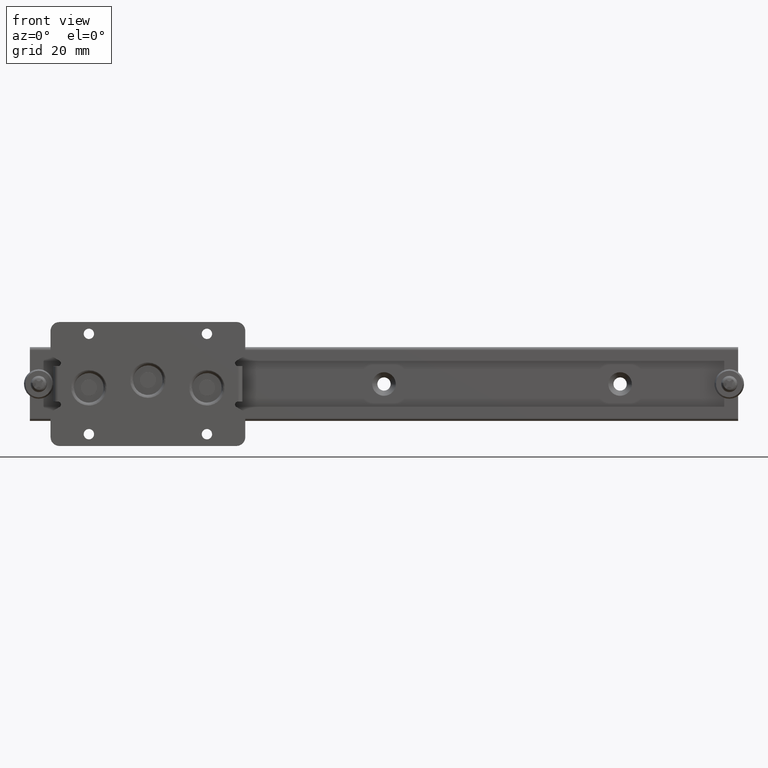
[diagram: clean part render]
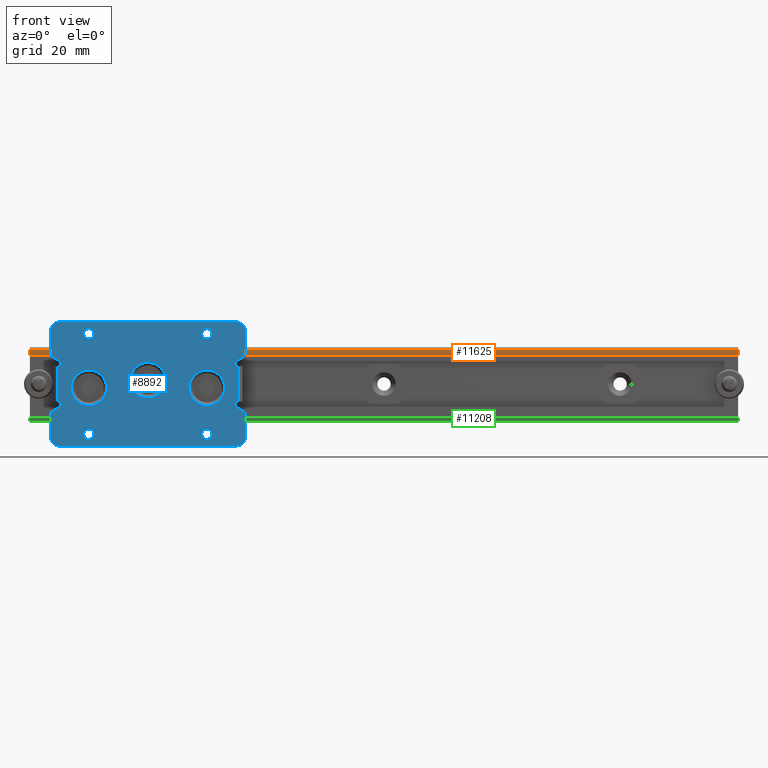
[diagram: same view with three faces highlighted in distinct colors, each labeled with its STEP entity id]
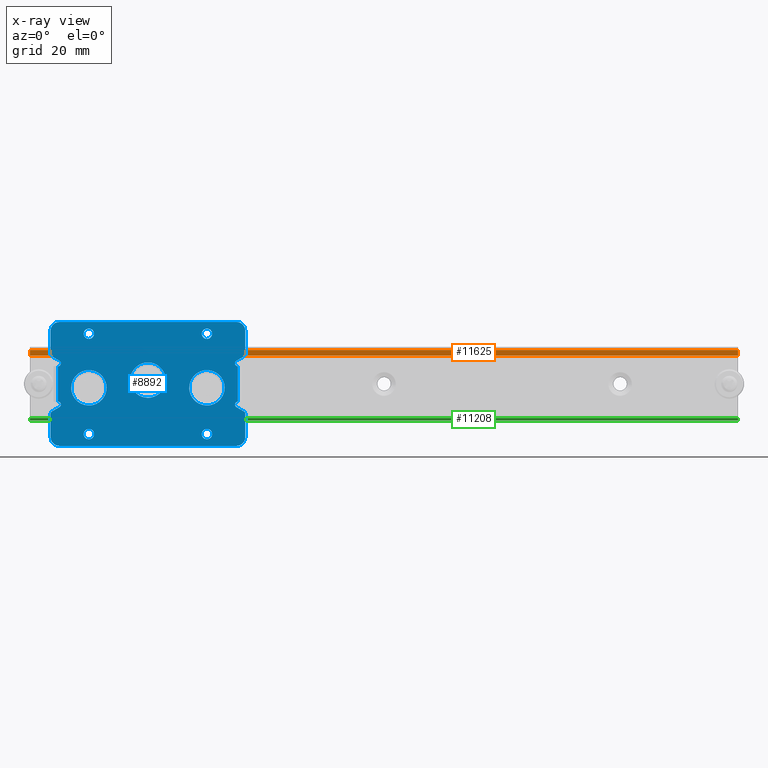
[diagram: x-ray of the same camera — body ghosted, the three highlighted faces saturated]
A machine part, front view with three faces highlighted in distinct colors.
The next image is the same camera in x-ray (body ghosted, the three faces saturated) — at least one of them is partly hidden behind the body in this view.
Their STEP definitions:

[orange] entity #11625 — the highlighted face is a freeform B-spline surface patch.
#11393=CARTESIAN_POINT('',(0.0,-8.500000000000000,9.599999999880820));
#11394=VERTEX_POINT('',#11393);
#11400=CARTESIAN_POINT('',(0.0,-8.500000000000000,11.499999999880901));
#11401=VERTEX_POINT('',#11400);
#11402=CARTESIAN_POINT('',(0.0,-8.500000000000000,9.599999999880820));
#11403=CARTESIAN_POINT('',(0.0,-8.500000000000000,11.499999999880901));
#11404=QUASI_UNIFORM_CURVE('',1,(#11402,#11403),.UNSPECIFIED.,.F.,.U.);
#11405=EDGE_CURVE('',#11394,#11401,#11404,.T.);
#11475=CARTESIAN_POINT('',(240.0,-8.500000000000000,11.499999999880901));
#11476=VERTEX_POINT('',#11475);
#11490=CARTESIAN_POINT('',(240.0,-8.500000000000000,9.599999999880820));
#11491=VERTEX_POINT('',#11490);
#11492=CARTESIAN_POINT('',(240.0,-8.500000000000000,9.599999999880820));
#11493=CARTESIAN_POINT('',(240.0,-8.500000000000000,11.499999999880901));
#11494=QUASI_UNIFORM_CURVE('',1,(#11492,#11493),.UNSPECIFIED.,.F.,.U.);
#11495=EDGE_CURVE('',#11491,#11476,#11494,.T.);
#11600=CARTESIAN_POINT('',(240.0,-8.500000000000000,11.499999999880901));
#11601=CARTESIAN_POINT('',(0.0,-8.500000000000000,11.499999999880901));
#11602=QUASI_UNIFORM_CURVE('',1,(#11600,#11601),.UNSPECIFIED.,.F.,.U.);
#11603=EDGE_CURVE('',#11476,#11401,#11602,.T.);
#11610=CARTESIAN_POINT('',(-11.987999534833410,-8.500000000000000,11.594904996198339));
#11611=CARTESIAN_POINT('',(-11.987999534833410,-8.500000000000000,9.505094952601413));
#11612=CARTESIAN_POINT('',(251.988005972135110,-8.500000000000000,11.594904996198339));
#11613=CARTESIAN_POINT('',(251.988005972135110,-8.500000000000000,9.505094952601413));
#11614=B_SPLINE_SURFACE_WITH_KNOTS('',1,1,((#11610,#11612),(#11611,#11613)),.UNSPECIFIED.,.F.,.F.,.U.,(2,2),(2,2),(0.0,2.089810043596925),(0.0,263.976005506968480),.UNSPECIFIED.);
#11615=ORIENTED_EDGE('',*,*,#11405,.F.);
#11616=CARTESIAN_POINT('',(240.0,-8.500000000000000,9.599999999880820));
#11617=CARTESIAN_POINT('',(0.0,-8.500000000000000,9.599999999880820));
#11618=QUASI_UNIFORM_CURVE('',1,(#11616,#11617),.UNSPECIFIED.,.F.,.U.);
#11619=EDGE_CURVE('',#11491,#11394,#11618,.T.);
#11620=ORIENTED_EDGE('',*,*,#11619,.F.);
#11621=ORIENTED_EDGE('',*,*,#11495,.T.);
#11622=ORIENTED_EDGE('',*,*,#11603,.T.);
#11623=EDGE_LOOP('',(#11615,#11620,#11621,#11622));
#11624=FACE_OUTER_BOUND('',#11623,.T.);
#11625=ADVANCED_FACE('',(#11624),#11614,.T.);

[blue] entity #8892 — the highlighted face is a freeform B-spline surface patch.
#6529=CARTESIAN_POINT('',(18.253264102996422,-12.0,17.106834948023089));
#6530=VERTEX_POINT('',#6529);
#6531=CARTESIAN_POINT('',(20.0,-12.0,15.250000000000000));
#6532=VERTEX_POINT('',#6531);
#6533=CARTESIAN_POINT('',(18.253264102996415,-12.0,17.106834948023085));
#6534=CARTESIAN_POINT('',(18.250000000000000,-11.999999999999996,17.053467337696457));
#6535=CARTESIAN_POINT('',(18.250000000000000,-12.0,17.0));
#6536=CARTESIAN_POINT('',(18.250000000000000,-12.0,15.250000000000002));
#6537=CARTESIAN_POINT('',(20.0,-12.0,15.250000000000000));
#6545=(BOUNDED_CURVE()B_SPLINE_CURVE(2,(#6533,#6534,#6535,#6536,#6537),.UNSPECIFIED.,.F.,.U.)B_SPLINE_CURVE_WITH_KNOTS((3,2,3),(0.239332961862932,0.250000000000000,0.500000000000000),.UNSPECIFIED.)CURVE()GEOMETRIC_REPRESENTATION_ITEM()RATIONAL_B_SPLINE_CURVE((0.976072040860854,0.987502787459313,1.0,0.707106781186547,1.0))REPRESENTATION_ITEM(''));
#6546=EDGE_CURVE('',#6530,#6532,#6545,.T.);
#6548=CARTESIAN_POINT('',(21.746735897003578,-12.0,16.893165051976919));
#6549=VERTEX_POINT('',#6548);
#6550=CARTESIAN_POINT('',(20.0,-12.0,15.250000000000000));
#6551=CARTESIAN_POINT('',(21.646235613461901,-12.0,15.249999999999998));
#6552=CARTESIAN_POINT('',(21.746735897003582,-12.0,16.893165051976915));
#6560=(BOUNDED_CURVE()B_SPLINE_CURVE(2,(#6550,#6551,#6552),.UNSPECIFIED.,.F.,.U.)B_SPLINE_CURVE_WITH_KNOTS((3,3),(0.500000000000000,0.739332961862932),.UNSPECIFIED.)CURVE()GEOMETRIC_REPRESENTATION_ITEM()RATIONAL_B_SPLINE_CURVE((1.0,0.719603993727234,0.976072040860855))REPRESENTATION_ITEM(''));
#6561=EDGE_CURVE('',#6532,#6549,#6560,.T.);
#6628=CARTESIAN_POINT('',(20.0,-12.0,18.750000000000000));
#6629=VERTEX_POINT('',#6628);
#6630=CARTESIAN_POINT('',(20.0,-12.0,18.750000000000000));
#6631=CARTESIAN_POINT('',(18.353764386538106,-11.999999999999998,18.750000000000000));
#6632=CARTESIAN_POINT('',(18.253264102996418,-12.000000000000004,17.106834948023089));
#6640=(BOUNDED_CURVE()B_SPLINE_CURVE(2,(#6630,#6631,#6632),.UNSPECIFIED.,.F.,.U.)B_SPLINE_CURVE_WITH_KNOTS((3,3),(0.0,0.239332961862932),.UNSPECIFIED.)CURVE()GEOMETRIC_REPRESENTATION_ITEM()RATIONAL_B_SPLINE_CURVE((1.0,0.719603993727235,0.976072040860854))REPRESENTATION_ITEM(''));
#6641=EDGE_CURVE('',#6629,#6530,#6640,.T.);
#6675=CARTESIAN_POINT('',(21.746735897003582,-12.0,16.893165051976915));
#6676=CARTESIAN_POINT('',(21.750000000000004,-12.0,16.946532662303547));
#6677=CARTESIAN_POINT('',(21.750000000000000,-12.0,17.0));
#6678=CARTESIAN_POINT('',(21.750000000000004,-12.0,18.750000000000007));
#6679=CARTESIAN_POINT('',(20.0,-12.0,18.750000000000000));
#6687=(BOUNDED_CURVE()B_SPLINE_CURVE(2,(#6675,#6676,#6677,#6678,#6679),.UNSPECIFIED.,.F.,.U.)B_SPLINE_CURVE_WITH_KNOTS((3,2,3),(0.739332961862932,0.750000000000000,1.0),.UNSPECIFIED.)CURVE()GEOMETRIC_REPRESENTATION_ITEM()RATIONAL_B_SPLINE_CURVE((0.976072040860855,0.987502787459313,1.0,0.707106781186547,1.0))REPRESENTATION_ITEM(''));
#6688=EDGE_CURVE('',#6549,#6629,#6687,.T.);
#6711=CARTESIAN_POINT('',(58.253264102996411,-12.0,17.106834948023089));
#6712=VERTEX_POINT('',#6711);
#6713=CARTESIAN_POINT('',(60.0,-12.0,15.250000000000000));
#6714=VERTEX_POINT('',#6713);
#6715=CARTESIAN_POINT('',(58.253264102996411,-12.000000000000002,17.106834948023089));
#6716=CARTESIAN_POINT('',(58.249999999999993,-11.999999999999996,17.053467337696453));
#6717=CARTESIAN_POINT('',(58.249999999999993,-12.0,17.0));
#6718=CARTESIAN_POINT('',(58.250000000000000,-12.0,15.250000000000002));
#6719=CARTESIAN_POINT('',(60.0,-12.0,15.250000000000000));
#6727=(BOUNDED_CURVE()B_SPLINE_CURVE(2,(#6715,#6716,#6717,#6718,#6719),.UNSPECIFIED.,.F.,.U.)B_SPLINE_CURVE_WITH_KNOTS((3,2,3),(0.239332961862932,0.250000000000000,0.500000000000000),.UNSPECIFIED.)CURVE()GEOMETRIC_REPRESENTATION_ITEM()RATIONAL_B_SPLINE_CURVE((0.976072040860854,0.987502787459313,1.0,0.707106781186547,1.0))REPRESENTATION_ITEM(''));
#6728=EDGE_CURVE('',#6712,#6714,#6727,.T.);
#6730=CARTESIAN_POINT('',(61.746735897003582,-12.0,16.893165051976919));
#6731=VERTEX_POINT('',#6730);
#6732=CARTESIAN_POINT('',(60.0,-12.0,15.250000000000000));
#6733=CARTESIAN_POINT('',(61.646235613461897,-12.0,15.249999999999998));
#6734=CARTESIAN_POINT('',(61.746735897003589,-12.0,16.893165051976915));
#6742=(BOUNDED_CURVE()B_SPLINE_CURVE(2,(#6732,#6733,#6734),.UNSPECIFIED.,.F.,.U.)B_SPLINE_CURVE_WITH_KNOTS((3,3),(0.500000000000000,0.739332961862932),.UNSPECIFIED.)CURVE()GEOMETRIC_REPRESENTATION_ITEM()RATIONAL_B_SPLINE_CURVE((1.0,0.719603993727234,0.976072040860855))REPRESENTATION_ITEM(''));
#6743=EDGE_CURVE('',#6714,#6731,#6742,.T.);
#6810=CARTESIAN_POINT('',(60.0,-12.0,18.750000000000000));
#6811=VERTEX_POINT('',#6810);
#6812=CARTESIAN_POINT('',(60.0,-12.0,18.750000000000000));
#6813=CARTESIAN_POINT('',(58.353764386538103,-12.0,18.750000000000011));
#6814=CARTESIAN_POINT('',(58.253264102996411,-12.000000000000005,17.106834948023085));
#6822=(BOUNDED_CURVE()B_SPLINE_CURVE(2,(#6812,#6813,#6814),.UNSPECIFIED.,.F.,.U.)B_SPLINE_CURVE_WITH_KNOTS((3,3),(0.0,0.239332961862931),.UNSPECIFIED.)CURVE()GEOMETRIC_REPRESENTATION_ITEM()RATIONAL_B_SPLINE_CURVE((1.0,0.719603993727235,0.976072040860854))REPRESENTATION_ITEM(''));
#6823=EDGE_CURVE('',#6811,#6712,#6822,.T.);
#6857=CARTESIAN_POINT('',(61.746735897003575,-11.999999999999998,16.893165051976915));
#6858=CARTESIAN_POINT('',(61.750000000000000,-12.000000000000004,16.946532662303550));
#6859=CARTESIAN_POINT('',(61.750000000000000,-12.0,17.0));
#6860=CARTESIAN_POINT('',(61.750000000000000,-12.0,18.750000000000007));
#6861=CARTESIAN_POINT('',(60.0,-12.0,18.750000000000000));
#6869=(BOUNDED_CURVE()B_SPLINE_CURVE(2,(#6857,#6858,#6859,#6860,#6861),.UNSPECIFIED.,.F.,.U.)B_SPLINE_CURVE_WITH_KNOTS((3,2,3),(0.739332961862932,0.750000000000000,1.0),.UNSPECIFIED.)CURVE()GEOMETRIC_REPRESENTATION_ITEM()RATIONAL_B_SPLINE_CURVE((0.976072040860854,0.987502787459313,1.0,0.707106781186547,1.0))REPRESENTATION_ITEM(''));
#6870=EDGE_CURVE('',#6731,#6811,#6869,.T.);
#6893=CARTESIAN_POINT('',(58.253264102996411,-12.0,-16.893165051976919));
#6894=VERTEX_POINT('',#6893);
#6895=CARTESIAN_POINT('',(60.0,-12.0,-18.750000000000000));
#6896=VERTEX_POINT('',#6895);
#6897=CARTESIAN_POINT('',(58.253264102996411,-12.000000000000002,-16.893165051976919));
#6898=CARTESIAN_POINT('',(58.249999999999986,-11.999999999999996,-16.946532662303554));
#6899=CARTESIAN_POINT('',(58.249999999999993,-12.0,-17.0));
#6900=CARTESIAN_POINT('',(58.250000000000000,-12.0,-18.750000000000007));
#6901=CARTESIAN_POINT('',(60.0,-12.0,-18.750000000000000));
#6909=(BOUNDED_CURVE()B_SPLINE_CURVE(2,(#6897,#6898,#6899,#6900,#6901),.UNSPECIFIED.,.F.,.U.)B_SPLINE_CURVE_WITH_KNOTS((3,2,3),(0.239332961862932,0.250000000000000,0.500000000000000),.UNSPECIFIED.)CURVE()GEOMETRIC_REPRESENTATION_ITEM()RATIONAL_B_SPLINE_CURVE((0.976072040860854,0.987502787459313,1.0,0.707106781186547,1.0))REPRESENTATION_ITEM(''));
#6910=EDGE_CURVE('',#6894,#6896,#6909,.T.);
#6912=CARTESIAN_POINT('',(61.746735897003582,-12.0,-17.106834948023089));
#6913=VERTEX_POINT('',#6912);
#6914=CARTESIAN_POINT('',(60.0,-12.0,-18.750000000000000));
#6915=CARTESIAN_POINT('',(61.646235613461876,-12.0,-18.750000000000004));
#6916=CARTESIAN_POINT('',(61.746735897003582,-12.0,-17.106834948023085));
#6924=(BOUNDED_CURVE()B_SPLINE_CURVE(2,(#6914,#6915,#6916),.UNSPECIFIED.,.F.,.U.)B_SPLINE_CURVE_WITH_KNOTS((3,3),(0.500000000000000,0.739332961862932),.UNSPECIFIED.)CURVE()GEOMETRIC_REPRESENTATION_ITEM()RATIONAL_B_SPLINE_CURVE((1.0,0.719603993727235,0.976072040860854))REPRESENTATION_ITEM(''));
#6925=EDGE_CURVE('',#6896,#6913,#6924,.T.);
#6992=CARTESIAN_POINT('',(60.0,-12.0,-15.250000000000000));
#6993=VERTEX_POINT('',#6992);
#6994=CARTESIAN_POINT('',(60.0,-12.0,-15.250000000000000));
#6995=CARTESIAN_POINT('',(58.353764386538096,-12.0,-15.250000000000004));
#6996=CARTESIAN_POINT('',(58.253264102996411,-12.000000000000002,-16.893165051976919));
#7004=(BOUNDED_CURVE()B_SPLINE_CURVE(2,(#6994,#6995,#6996),.UNSPECIFIED.,.F.,.U.)B_SPLINE_CURVE_WITH_KNOTS((3,3),(0.0,0.239332961862932),.UNSPECIFIED.)CURVE()GEOMETRIC_REPRESENTATION_ITEM()RATIONAL_B_SPLINE_CURVE((1.0,0.719603993727235,0.976072040860854))REPRESENTATION_ITEM(''));
#7005=EDGE_CURVE('',#6993,#6894,#7004,.T.);
#7039=CARTESIAN_POINT('',(61.746735897003589,-12.000000000000004,-17.106834948023078));
#7040=CARTESIAN_POINT('',(61.750000000000000,-12.000000000000002,-17.053467337696450));
#7041=CARTESIAN_POINT('',(61.750000000000000,-12.0,-17.0));
#7042=CARTESIAN_POINT('',(61.750000000000000,-12.0,-15.250000000000002));
#7043=CARTESIAN_POINT('',(60.0,-12.0,-15.250000000000000));
#7051=(BOUNDED_CURVE()B_SPLINE_CURVE(2,(#7039,#7040,#7041,#7042,#7043),.UNSPECIFIED.,.F.,.U.)B_SPLINE_CURVE_WITH_KNOTS((3,2,3),(0.739332961862932,0.750000000000000,1.0),.UNSPECIFIED.)CURVE()GEOMETRIC_REPRESENTATION_ITEM()RATIONAL_B_SPLINE_CURVE((0.976072040860855,0.987502787459313,1.0,0.707106781186547,1.0))REPRESENTATION_ITEM(''));
#7052=EDGE_CURVE('',#6913,#6993,#7051,.T.);
#7075=CARTESIAN_POINT('',(18.253264102996422,-12.0,-16.893165051976919));
#7076=VERTEX_POINT('',#7075);
#7077=CARTESIAN_POINT('',(20.0,-12.0,-18.750000000000000));
#7078=VERTEX_POINT('',#7077);
#7079=CARTESIAN_POINT('',(18.253264102996425,-11.999999999999998,-16.893165051976915));
#7080=CARTESIAN_POINT('',(18.249999999999996,-12.000000000000004,-16.946532662303550));
#7081=CARTESIAN_POINT('',(18.250000000000000,-12.0,-17.0));
#7082=CARTESIAN_POINT('',(18.250000000000000,-12.0,-18.750000000000007));
#7083=CARTESIAN_POINT('',(20.0,-12.0,-18.750000000000000));
#7091=(BOUNDED_CURVE()B_SPLINE_CURVE(2,(#7079,#7080,#7081,#7082,#7083),.UNSPECIFIED.,.F.,.U.)B_SPLINE_CURVE_WITH_KNOTS((3,2,3),(0.239332961862932,0.250000000000000,0.500000000000000),.UNSPECIFIED.)CURVE()GEOMETRIC_REPRESENTATION_ITEM()RATIONAL_B_SPLINE_CURVE((0.976072040860854,0.987502787459313,1.0,0.707106781186547,1.0))REPRESENTATION_ITEM(''));
#7092=EDGE_CURVE('',#7076,#7078,#7091,.T.);
#7094=CARTESIAN_POINT('',(21.746735897003578,-12.0,-17.106834948023089));
#7095=VERTEX_POINT('',#7094);
#7096=CARTESIAN_POINT('',(20.0,-12.0,-18.750000000000000));
#7097=CARTESIAN_POINT('',(21.646235613461901,-12.0,-18.750000000000004));
#7098=CARTESIAN_POINT('',(21.746735897003589,-12.0,-17.106834948023085));
#7106=(BOUNDED_CURVE()B_SPLINE_CURVE(2,(#7096,#7097,#7098),.UNSPECIFIED.,.F.,.U.)B_SPLINE_CURVE_WITH_KNOTS((3,3),(0.500000000000000,0.739332961862932),.UNSPECIFIED.)CURVE()GEOMETRIC_REPRESENTATION_ITEM()RATIONAL_B_SPLINE_CURVE((1.0,0.719603993727235,0.976072040860854))REPRESENTATION_ITEM(''));
#7107=EDGE_CURVE('',#7078,#7095,#7106,.T.);
#7174=CARTESIAN_POINT('',(20.0,-12.0,-15.250000000000000));
#7175=VERTEX_POINT('',#7174);
#7176=CARTESIAN_POINT('',(20.0,-12.0,-15.250000000000000));
#7177=CARTESIAN_POINT('',(18.353764386538099,-12.0,-15.250000000000009));
#7178=CARTESIAN_POINT('',(18.253264102996418,-12.000000000000004,-16.893165051976922));
#7186=(BOUNDED_CURVE()B_SPLINE_CURVE(2,(#7176,#7177,#7178),.UNSPECIFIED.,.F.,.U.)B_SPLINE_CURVE_WITH_KNOTS((3,3),(0.0,0.239332961862932),.UNSPECIFIED.)CURVE()GEOMETRIC_REPRESENTATION_ITEM()RATIONAL_B_SPLINE_CURVE((1.0,0.719603993727234,0.976072040860855))REPRESENTATION_ITEM(''));
#7187=EDGE_CURVE('',#7175,#7076,#7186,.T.);
#7221=CARTESIAN_POINT('',(21.746735897003582,-11.999999999999998,-17.106834948023081));
#7222=CARTESIAN_POINT('',(21.750000000000004,-12.000000000000004,-17.053467337696457));
#7223=CARTESIAN_POINT('',(21.750000000000000,-12.0,-17.0));
#7224=CARTESIAN_POINT('',(21.750000000000004,-12.0,-15.250000000000002));
#7225=CARTESIAN_POINT('',(20.0,-12.0,-15.250000000000000));
#7233=(BOUNDED_CURVE()B_SPLINE_CURVE(2,(#7221,#7222,#7223,#7224,#7225),.UNSPECIFIED.,.F.,.U.)B_SPLINE_CURVE_WITH_KNOTS((3,2,3),(0.739332961862932,0.750000000000000,1.0),.UNSPECIFIED.)CURVE()GEOMETRIC_REPRESENTATION_ITEM()RATIONAL_B_SPLINE_CURVE((0.976072040860854,0.987502787459313,1.0,0.707106781186547,1.0))REPRESENTATION_ITEM(''));
#7234=EDGE_CURVE('',#7095,#7175,#7233,.T.);
#7496=CARTESIAN_POINT('',(25.999526233002189,-12.0,-1.224603755668588));
#7497=VERTEX_POINT('',#7496);
#7498=CARTESIAN_POINT('',(20.0,-12.0,-7.299999999880897));
#7499=VERTEX_POINT('',#7498);
#7500=CARTESIAN_POINT('',(25.999526233002200,-11.999999999999998,-1.224603755668588));
#7501=CARTESIAN_POINT('',(25.999999967945858,-12.000000000000004,-1.262300389673933));
#7502=CARTESIAN_POINT('',(25.999999968046879,-12.0,-1.300000000282452));
#7503=CARTESIAN_POINT('',(25.999999984123829,-12.0,-7.300000000080414));
#7504=CARTESIAN_POINT('',(20.0,-12.0,-7.299999999880897));
#7512=(BOUNDED_CURVE()B_SPLINE_CURVE(2,(#7500,#7501,#7502,#7503,#7504),.UNSPECIFIED.,.F.,.U.)B_SPLINE_CURVE_WITH_KNOTS((3,2,3),(0.247784295765890,0.250000000000000,0.500000000000000),.UNSPECIFIED.)CURVE()GEOMETRIC_REPRESENTATION_ITEM()RATIONAL_B_SPLINE_CURVE((0.994854295285333,0.997404141019731,1.0,0.707106781186548,1.0))REPRESENTATION_ITEM(''));
#7513=EDGE_CURVE('',#7497,#7499,#7512,.T.);
#7530=CARTESIAN_POINT('',(14.000473766997819,-12.0,-1.375396244093203));
#7531=VERTEX_POINT('',#7530);
#7545=CARTESIAN_POINT('',(20.0,-12.0,-7.299999999880897));
#7546=CARTESIAN_POINT('',(14.074928441883774,-12.0,-7.299999999678859));
#7547=CARTESIAN_POINT('',(14.000473766997816,-11.999999999999996,-1.375396244093203));
#7555=(BOUNDED_CURVE()B_SPLINE_CURVE(2,(#7545,#7546,#7547),.UNSPECIFIED.,.F.,.U.)B_SPLINE_CURVE_WITH_KNOTS((3,3),(0.500000000000000,0.747784295765890),.UNSPECIFIED.)CURVE()GEOMETRIC_REPRESENTATION_ITEM()RATIONAL_B_SPLINE_CURVE((1.0,0.709702640166816,0.994854295285333))REPRESENTATION_ITEM(''));
#7556=EDGE_CURVE('',#7499,#7531,#7555,.T.);
#7584=CARTESIAN_POINT('',(20.0,-12.0,4.700000000119104));
#7585=VERTEX_POINT('',#7584);
#7586=CARTESIAN_POINT('',(20.0,-12.0,4.700000000119104));
#7587=CARTESIAN_POINT('',(25.925071558116240,-12.0,4.699999999917066));
#7588=CARTESIAN_POINT('',(25.999526233002200,-11.999999999999998,-1.224603755668588));
#7596=(BOUNDED_CURVE()B_SPLINE_CURVE(2,(#7586,#7587,#7588),.UNSPECIFIED.,.F.,.U.)B_SPLINE_CURVE_WITH_KNOTS((3,3),(0.0,0.247784295765890),.UNSPECIFIED.)CURVE()GEOMETRIC_REPRESENTATION_ITEM()RATIONAL_B_SPLINE_CURVE((1.0,0.709702640166816,0.994854295285333))REPRESENTATION_ITEM(''));
#7597=EDGE_CURVE('',#7585,#7497,#7596,.T.);
#7599=CARTESIAN_POINT('',(14.000473766997816,-11.999999999999996,-1.375396244093203));
#7600=CARTESIAN_POINT('',(14.000000032054148,-12.000000000000004,-1.337699610087859));
#7601=CARTESIAN_POINT('',(14.000000031953141,-12.0,-1.299999999479341));
#7602=CARTESIAN_POINT('',(14.000000015876180,-12.0,4.700000000318620));
#7603=CARTESIAN_POINT('',(20.0,-12.0,4.700000000119104));
#7611=(BOUNDED_CURVE()B_SPLINE_CURVE(2,(#7599,#7600,#7601,#7602,#7603),.UNSPECIFIED.,.F.,.U.)B_SPLINE_CURVE_WITH_KNOTS((3,2,3),(0.747784295765890,0.750000000000000,1.0),.UNSPECIFIED.)CURVE()GEOMETRIC_REPRESENTATION_ITEM()RATIONAL_B_SPLINE_CURVE((0.994854295285333,0.997404141019731,1.0,0.707106781186548,1.0))REPRESENTATION_ITEM(''));
#7612=EDGE_CURVE('',#7531,#7585,#7611,.T.);
#7644=CARTESIAN_POINT('',(45.999526233002193,-12.0,1.375396244093204));
#7645=VERTEX_POINT('',#7644);
#7646=CARTESIAN_POINT('',(40.0,-12.0,-4.700000000119104));
#7647=VERTEX_POINT('',#7646);
#7648=CARTESIAN_POINT('',(45.999526233002179,-11.999999999999998,1.375396244093204));
#7649=CARTESIAN_POINT('',(45.999999967945854,-12.000000000000004,1.337699610087859));
#7650=CARTESIAN_POINT('',(45.999999968046872,-12.0,1.299999999479340));
#7651=CARTESIAN_POINT('',(45.999999984123818,-12.0,-4.700000000318620));
#7652=CARTESIAN_POINT('',(40.0,-12.0,-4.700000000119104));
#7660=(BOUNDED_CURVE()B_SPLINE_CURVE(2,(#7648,#7649,#7650,#7651,#7652),.UNSPECIFIED.,.F.,.U.)B_SPLINE_CURVE_WITH_KNOTS((3,2,3),(0.247784295765890,0.250000000000000,0.500000000000000),.UNSPECIFIED.)CURVE()GEOMETRIC_REPRESENTATION_ITEM()RATIONAL_B_SPLINE_CURVE((0.994854295285333,0.997404141019731,1.0,0.707106781186548,1.0))REPRESENTATION_ITEM(''));
#7661=EDGE_CURVE('',#7645,#7647,#7660,.T.);
#7678=CARTESIAN_POINT('',(34.000473766997807,-12.0,1.224603755668590));
#7679=VERTEX_POINT('',#7678);
#7693=CARTESIAN_POINT('',(40.0,-12.0,-4.700000000119104));
#7694=CARTESIAN_POINT('',(34.074928441883777,-11.999999999999998,-4.699999999917066));
#7695=CARTESIAN_POINT('',(34.000473766997821,-11.999999999999996,1.224603755668590));
#7703=(BOUNDED_CURVE()B_SPLINE_CURVE(2,(#7693,#7694,#7695),.UNSPECIFIED.,.F.,.U.)B_SPLINE_CURVE_WITH_KNOTS((3,3),(0.500000000000000,0.747784295765890),.UNSPECIFIED.)CURVE()GEOMETRIC_REPRESENTATION_ITEM()RATIONAL_B_SPLINE_CURVE((1.0,0.709702640166816,0.994854295285333))REPRESENTATION_ITEM(''));
#7704=EDGE_CURVE('',#7647,#7679,#7703,.T.);
#7732=CARTESIAN_POINT('',(40.0,-12.0,7.299999999880897));
#7733=VERTEX_POINT('',#7732);
#7734=CARTESIAN_POINT('',(40.0,-12.0,7.299999999880897));
#7735=CARTESIAN_POINT('',(45.925071558116223,-12.0,7.299999999678859));
#7736=CARTESIAN_POINT('',(45.999526233002179,-11.999999999999998,1.375396244093204));
#7744=(BOUNDED_CURVE()B_SPLINE_CURVE(2,(#7734,#7735,#7736),.UNSPECIFIED.,.F.,.U.)B_SPLINE_CURVE_WITH_KNOTS((3,3),(0.0,0.247784295765890),.UNSPECIFIED.)CURVE()GEOMETRIC_REPRESENTATION_ITEM()RATIONAL_B_SPLINE_CURVE((1.0,0.709702640166816,0.994854295285333))REPRESENTATION_ITEM(''));
#7745=EDGE_CURVE('',#7733,#7645,#7744,.T.);
#7747=CARTESIAN_POINT('',(34.000473766997821,-11.999999999999996,1.224603755668590));
#7748=CARTESIAN_POINT('',(34.000000032054139,-11.999999999999993,1.262300389673933));
#7749=CARTESIAN_POINT('',(34.000000031953142,-12.0,1.300000000282451));
#7750=CARTESIAN_POINT('',(34.000000015876175,-11.999999999999998,7.300000000080414));
#7751=CARTESIAN_POINT('',(40.0,-12.0,7.299999999880897));
#7759=(BOUNDED_CURVE()B_SPLINE_CURVE(2,(#7747,#7748,#7749,#7750,#7751),.UNSPECIFIED.,.F.,.U.)B_SPLINE_CURVE_WITH_KNOTS((3,2,3),(0.747784295765890,0.750000000000000,1.0),.UNSPECIFIED.)CURVE()GEOMETRIC_REPRESENTATION_ITEM()RATIONAL_B_SPLINE_CURVE((0.994854295285333,0.997404141019731,1.0,0.707106781186548,1.0))REPRESENTATION_ITEM(''));
#7760=EDGE_CURVE('',#7679,#7733,#7759,.T.);
#7792=CARTESIAN_POINT('',(65.999526233002172,-12.0,-1.224603755668588));
#7793=VERTEX_POINT('',#7792);
#7794=CARTESIAN_POINT('',(60.0,-12.0,-7.299999999880897));
#7795=VERTEX_POINT('',#7794);
#7796=CARTESIAN_POINT('',(65.999526233002172,-11.999999999999996,-1.224603755668588));
#7797=CARTESIAN_POINT('',(65.999999967945840,-11.999999999999993,-1.262300389673933));
#7798=CARTESIAN_POINT('',(65.999999968046865,-12.0,-1.300000000282452));
#7799=CARTESIAN_POINT('',(65.999999984123818,-12.0,-7.300000000080414));
#7800=CARTESIAN_POINT('',(60.0,-12.0,-7.299999999880897));
#7808=(BOUNDED_CURVE()B_SPLINE_CURVE(2,(#7796,#7797,#7798,#7799,#7800),.UNSPECIFIED.,.F.,.U.)B_SPLINE_CURVE_WITH_KNOTS((3,2,3),(0.247784295765890,0.250000000000000,0.500000000000000),.UNSPECIFIED.)CURVE()GEOMETRIC_REPRESENTATION_ITEM()RATIONAL_B_SPLINE_CURVE((0.994854295285333,0.997404141019731,1.0,0.707106781186548,1.0))REPRESENTATION_ITEM(''));
#7809=EDGE_CURVE('',#7793,#7795,#7808,.T.);
#7826=CARTESIAN_POINT('',(54.000473766997821,-12.0,-1.375396244093203));
#7827=VERTEX_POINT('',#7826);
#7841=CARTESIAN_POINT('',(60.0,-12.0,-7.299999999880897));
#7842=CARTESIAN_POINT('',(54.074928441883770,-12.0,-7.299999999678859));
#7843=CARTESIAN_POINT('',(54.000473766997821,-11.999999999999996,-1.375396244093203));
#7851=(BOUNDED_CURVE()B_SPLINE_CURVE(2,(#7841,#7842,#7843),.UNSPECIFIED.,.F.,.U.)B_SPLINE_CURVE_WITH_KNOTS((3,3),(0.500000000000000,0.747784295765890),.UNSPECIFIED.)CURVE()GEOMETRIC_REPRESENTATION_ITEM()RATIONAL_B_SPLINE_CURVE((1.0,0.709702640166816,0.994854295285333))REPRESENTATION_ITEM(''));
#7852=EDGE_CURVE('',#7795,#7827,#7851,.T.);
#7880=CARTESIAN_POINT('',(60.0,-12.0,4.700000000119104));
#7881=VERTEX_POINT('',#7880);
#7882=CARTESIAN_POINT('',(60.0,-12.0,4.700000000119104));
#7883=CARTESIAN_POINT('',(65.925071558116230,-11.999999999999998,4.699999999917064));
#7884=CARTESIAN_POINT('',(65.999526233002172,-11.999999999999998,-1.224603755668588));
#7892=(BOUNDED_CURVE()B_SPLINE_CURVE(2,(#7882,#7883,#7884),.UNSPECIFIED.,.F.,.U.)B_SPLINE_CURVE_WITH_KNOTS((3,3),(0.0,0.247784295765890),.UNSPECIFIED.)CURVE()GEOMETRIC_REPRESENTATION_ITEM()RATIONAL_B_SPLINE_CURVE((1.0,0.709702640166816,0.994854295285333))REPRESENTATION_ITEM(''));
#7893=EDGE_CURVE('',#7881,#7793,#7892,.T.);
#7895=CARTESIAN_POINT('',(54.000473766997821,-11.999999999999996,-1.375396244093203));
#7896=CARTESIAN_POINT('',(54.000000032054153,-12.000000000000004,-1.337699610087859));
#7897=CARTESIAN_POINT('',(54.000000031953142,-12.0,-1.299999999479341));
#7898=CARTESIAN_POINT('',(54.000000015876189,-12.0,4.700000000318620));
#7899=CARTESIAN_POINT('',(60.0,-12.0,4.700000000119104));
#7907=(BOUNDED_CURVE()B_SPLINE_CURVE(2,(#7895,#7896,#7897,#7898,#7899),.UNSPECIFIED.,.F.,.U.)B_SPLINE_CURVE_WITH_KNOTS((3,2,3),(0.747784295765890,0.750000000000000,1.0),.UNSPECIFIED.)CURVE()GEOMETRIC_REPRESENTATION_ITEM()RATIONAL_B_SPLINE_CURVE((0.994854295285333,0.997404141019731,1.0,0.707106781186548,1.0))REPRESENTATION_ITEM(''));
#7908=EDGE_CURVE('',#7827,#7881,#7907,.T.);
#8154=CARTESIAN_POINT('',(9.500000000000000,-12.0,6.0));
#8155=VERTEX_POINT('',#8154);
#8173=CARTESIAN_POINT('',(9.499999999999890,-12.0,-6.0));
#8174=VERTEX_POINT('',#8173);
#8188=CARTESIAN_POINT('',(9.500000000000000,-12.0,6.0));
#8189=CARTESIAN_POINT('',(9.499999999999890,-12.0,-6.0));
#8190=QUASI_UNIFORM_CURVE('',1,(#8188,#8189),.UNSPECIFIED.,.F.,.U.);
#8191=EDGE_CURVE('',#8155,#8174,#8190,.T.);
#8212=CARTESIAN_POINT('',(70.499999999866006,-12.0,-5.999999999999830));
#8213=VERTEX_POINT('',#8212);
#8231=CARTESIAN_POINT('',(70.499999999865892,-12.0,6.0));
#8232=VERTEX_POINT('',#8231);
#8243=CARTESIAN_POINT('',(70.499999999866006,-12.0,-5.999999999999830));
#8244=CARTESIAN_POINT('',(70.499999999865892,-12.0,6.0));
#8245=QUASI_UNIFORM_CURVE('',1,(#8243,#8244),.UNSPECIFIED.,.F.,.U.);
#8246=EDGE_CURVE('',#8213,#8232,#8245,.T.);
#8595=CARTESIAN_POINT('',(3.703300127920689,-12.0,23.097899918595861));
#8596=CARTESIAN_POINT('',(76.296701642337155,-12.0,23.097899918595861));
#8597=CARTESIAN_POINT('',(3.703300127920689,-12.0,-23.097901045123638));
#8598=CARTESIAN_POINT('',(76.296701642337155,-12.0,-23.097901045123638));
#8599=B_SPLINE_SURFACE_WITH_KNOTS('',1,1,((#8595,#8597),(#8596,#8598)),.UNSPECIFIED.,.F.,.F.,.U.,(2,2),(2,2),(0.0,72.593401514416470),(0.0,46.195800963719492),.UNSPECIFIED.);
#8600=CARTESIAN_POINT('',(69.999999999866006,-12.0,-7.866025403784390));
#8601=VERTEX_POINT('',#8600);
#8602=CARTESIAN_POINT('',(70.499999999866006,-12.0,-5.999999999999830));
#8603=CARTESIAN_POINT('',(70.349945696244447,-11.999999999999970,-5.999737849659034));
#8604=CARTESIAN_POINT('',(70.132033619379868,-12.000000000000041,-6.050051506918273));
#8605=CARTESIAN_POINT('',(69.851921322728458,-11.999999999999980,-6.222666857134929));
#8606=CARTESIAN_POINT('',(69.644085209917648,-12.000000000000011,-6.444469605622492));
#8607=CARTESIAN_POINT('',(69.496471302022357,-12.0,-6.788613714035655));
#8608=CARTESIAN_POINT('',(69.490829800011852,-11.999999999999980,-7.136552536308696));
#8609=CARTESIAN_POINT('',(69.621048132951458,-12.000000000000140,-7.542267850318578));
#8610=CARTESIAN_POINT('',(69.822234808083053,-11.999999999999901,-7.764335071303957));
#8611=CARTESIAN_POINT('',(69.999999999866006,-12.0,-7.866025403784390));
#8612=B_SPLINE_CURVE_WITH_KNOTS('',3,(#8602,#8603,#8604,#8605,#8606,#8607,#8608,#8609,#8610,#8611),.UNSPECIFIED.,.F.,.U.,(4,1,1,1,1,1,1,4),(0.000002230398331,0.450003787977357,0.654552570550641,0.981900818874270,1.349881413487044,1.759041374543438,2.004549075055192,2.618176293600360),.UNSPECIFIED.);
#8613=EDGE_CURVE('',#8213,#8601,#8612,.T.);
#8614=ORIENTED_EDGE('',*,*,#8613,.F.);
#8615=ORIENTED_EDGE('',*,*,#8246,.T.);
#8616=CARTESIAN_POINT('',(69.999999999866006,-12.0,7.866025403784509));
#8617=VERTEX_POINT('',#8616);
#8618=CARTESIAN_POINT('',(69.999999999866006,-12.0,7.866025403784509));
#8619=CARTESIAN_POINT('',(69.869945704135802,-11.999999999999980,7.791218898249169));
#8620=CARTESIAN_POINT('',(69.655085449361010,-12.000000000000050,7.591062333095627));
#8621=CARTESIAN_POINT('',(69.511176638773932,-12.0,7.243782468239337));
#8622=CARTESIAN_POINT('',(69.489762796669183,-11.999999999999980,6.914710271081889));
#8623=CARTESIAN_POINT('',(69.559323580875670,-11.999999999999989,6.604624528162269));
#8624=CARTESIAN_POINT('',(69.753441087095979,-12.000000000000080,6.300758424260422));
#8625=CARTESIAN_POINT('',(70.077459515724115,-11.999999999999860,6.062516664521228));
#8626=CARTESIAN_POINT('',(70.350004691228207,-12.000000000000110,5.999779718379857));
#8627=CARTESIAN_POINT('',(70.499999999865892,-12.0,6.0));
#8628=B_SPLINE_CURVE_WITH_KNOTS('',3,(#8618,#8619,#8620,#8621,#8622,#8623,#8624,#8625,#8626,#8627),.UNSPECIFIED.,.F.,.U.,(4,1,1,1,1,1,1,4),(0.000002230397171,0.450003787975591,0.859146117715211,1.104651673682945,1.431780630907610,1.799988506723820,2.168224245648093,2.618176293600216),.UNSPECIFIED.);
#8629=EDGE_CURVE('',#8617,#8232,#8628,.T.);
#8630=ORIENTED_EDGE('',*,*,#8629,.F.);
#8631=CARTESIAN_POINT('',(72.499999999865892,-12.0,9.309401076758491));
#8632=VERTEX_POINT('',#8631);
#8633=CARTESIAN_POINT('',(69.999999999866006,-12.0,7.866025403784509));
#8634=CARTESIAN_POINT('',(72.499999999865892,-12.0,9.309401076758491));
#8635=QUASI_UNIFORM_CURVE('',1,(#8633,#8634),.UNSPECIFIED.,.F.,.U.);
#8636=EDGE_CURVE('',#8617,#8632,#8635,.T.);
#8637=ORIENTED_EDGE('',*,*,#8636,.T.);
#8638=CARTESIAN_POINT('',(73.0,-12.0,10.175426480620301));
#8639=VERTEX_POINT('',#8638);
#8640=CARTESIAN_POINT('',(72.499999999865921,-12.0,9.309401076758450));
#8641=CARTESIAN_POINT('',(73.000000000000014,-12.000000000000005,9.598076211327461));
#8642=CARTESIAN_POINT('',(73.0,-12.0,10.175426480620301));
#8650=(BOUNDED_CURVE()B_SPLINE_CURVE(2,(#8640,#8641,#8642),.UNSPECIFIED.,.F.,.U.)CURVE()GEOMETRIC_REPRESENTATION_ITEM()QUASI_UNIFORM_CURVE()RATIONAL_B_SPLINE_CURVE((1.0,0.866025403745734,1.0))REPRESENTATION_ITEM(''));
#8651=EDGE_CURVE('',#8632,#8639,#8650,.T.);
#8652=ORIENTED_EDGE('',*,*,#8651,.T.);
#8653=CARTESIAN_POINT('',(73.0,-12.0,18.0));
#8654=VERTEX_POINT('',#8653);
#8655=CARTESIAN_POINT('',(73.0,-12.0,10.175426480620301));
#8656=CARTESIAN_POINT('',(73.0,-12.0,18.0));
#8657=QUASI_UNIFORM_CURVE('',1,(#8655,#8656),.UNSPECIFIED.,.F.,.U.);
#8658=EDGE_CURVE('',#8639,#8654,#8657,.T.);
#8659=ORIENTED_EDGE('',*,*,#8658,.T.);
#8660=CARTESIAN_POINT('',(70.0,-12.0,21.0));
#8661=VERTEX_POINT('',#8660);
#8662=CARTESIAN_POINT('',(73.000000000000014,-12.0,18.0));
#8663=CARTESIAN_POINT('',(73.000000000000014,-12.0,21.000000000000004));
#8664=CARTESIAN_POINT('',(70.0,-12.0,21.0));
#8672=(BOUNDED_CURVE()B_SPLINE_CURVE(2,(#8662,#8663,#8664),.UNSPECIFIED.,.F.,.U.)CURVE()GEOMETRIC_REPRESENTATION_ITEM()QUASI_UNIFORM_CURVE()RATIONAL_B_SPLINE_CURVE((1.0,0.707106781186548,1.0))REPRESENTATION_ITEM(''));
#8673=EDGE_CURVE('',#8654,#8661,#8672,.T.);
#8674=ORIENTED_EDGE('',*,*,#8673,.T.);
#8675=CARTESIAN_POINT('',(10.0,-12.0,21.0));
#8676=VERTEX_POINT('',#8675);
#8677=CARTESIAN_POINT('',(70.0,-12.0,21.0));
#8678=CARTESIAN_POINT('',(10.0,-12.0,21.0));
#8679=QUASI_UNIFORM_CURVE('',1,(#8677,#8678),.UNSPECIFIED.,.F.,.U.);
#8680=EDGE_CURVE('',#8661,#8676,#8679,.T.);
#8681=ORIENTED_EDGE('',*,*,#8680,.T.);
#8682=CARTESIAN_POINT('',(7.0,-12.0,18.0));
#8683=VERTEX_POINT('',#8682);
#8684=CARTESIAN_POINT('',(10.0,-12.0,21.0));
#8685=CARTESIAN_POINT('',(6.999999999999999,-12.0,21.000000000000004));
#8686=CARTESIAN_POINT('',(7.0,-12.0,18.0));
#8694=(BOUNDED_CURVE()B_SPLINE_CURVE(2,(#8684,#8685,#8686),.UNSPECIFIED.,.F.,.U.)CURVE()GEOMETRIC_REPRESENTATION_ITEM()QUASI_UNIFORM_CURVE()RATIONAL_B_SPLINE_CURVE((1.0,0.707106781186548,1.0))REPRESENTATION_ITEM(''));
#8695=EDGE_CURVE('',#8676,#8683,#8694,.T.);
#8696=ORIENTED_EDGE('',*,*,#8695,.T.);
#8697=CARTESIAN_POINT('',(7.0,-12.0,10.175426480542900));
#8698=VERTEX_POINT('',#8697);
#8699=CARTESIAN_POINT('',(7.0,-12.0,18.0));
#8700=CARTESIAN_POINT('',(7.0,-12.0,10.175426480542900));
#8701=QUASI_UNIFORM_CURVE('',1,(#8699,#8700),.UNSPECIFIED.,.F.,.U.);
#8702=EDGE_CURVE('',#8683,#8698,#8701,.T.);
#8703=ORIENTED_EDGE('',*,*,#8702,.T.);
#8704=CARTESIAN_POINT('',(7.500000000000000,-12.0,9.309401076758460));
#8705=VERTEX_POINT('',#8704);
#8706=CARTESIAN_POINT('',(7.0,-12.0,10.175426480542900));
#8707=CARTESIAN_POINT('',(7.0,-11.999999999999995,9.598076211353273));
#8708=CARTESIAN_POINT('',(7.500000000000001,-12.0,9.309401076758460));
#8716=(BOUNDED_CURVE()B_SPLINE_CURVE(2,(#8706,#8707,#8708),.UNSPECIFIED.,.F.,.U.)CURVE()GEOMETRIC_REPRESENTATION_ITEM()QUASI_UNIFORM_CURVE()RATIONAL_B_SPLINE_CURVE((1.0,0.866025403784439,1.0))REPRESENTATION_ITEM(''));
#8717=EDGE_CURVE('',#8698,#8705,#8716,.T.);
#8718=ORIENTED_EDGE('',*,*,#8717,.T.);
#8719=CARTESIAN_POINT('',(9.999999999999890,-12.0,7.866025403784509));
#8720=VERTEX_POINT('',#8719);
#8721=CARTESIAN_POINT('',(7.500000000000000,-12.0,9.309401076758460));
#8722=CARTESIAN_POINT('',(9.999999999999890,-12.0,7.866025403784509));
#8723=QUASI_UNIFORM_CURVE('',1,(#8721,#8722),.UNSPECIFIED.,.F.,.U.);
#8724=EDGE_CURVE('',#8705,#8720,#8723,.T.);
#8725=ORIENTED_EDGE('',*,*,#8724,.T.);
#8726=CARTESIAN_POINT('',(9.500000000000000,-12.0,6.0));
#8727=CARTESIAN_POINT('',(9.677364288582723,-12.000000000000011,5.999566978698998));
#8728=CARTESIAN_POINT('',(9.949554872016179,-11.999999999999989,6.074430475994770));
#8729=CARTESIAN_POINT('',(10.239935927467959,-12.000000000000020,6.307049059610247));
#8730=CARTESIAN_POINT('',(10.413440153192299,-11.999999999999959,6.555520896861870));
#8731=CARTESIAN_POINT('',(10.499919805363991,-12.000000000000060,6.832500417960714));
#8732=CARTESIAN_POINT('',(10.505096582962430,-11.999999999999940,7.148426534602767));
#8733=CARTESIAN_POINT('',(10.390125564129720,-12.000000000000080,7.533869559161731));
#8734=CARTESIAN_POINT('',(10.165739611072180,-11.999999999999959,7.771034531757699));
#8735=CARTESIAN_POINT('',(9.999999999999890,-12.0,7.866025403784509));
#8736=B_SPLINE_CURVE_WITH_KNOTS('',3,(#8726,#8727,#8728,#8729,#8730,#8731,#8732,#8733,#8734,#8735),.UNSPECIFIED.,.F.,.U.,(4,1,1,1,1,1,1,4),(0.000002230397568,0.531798864978953,0.818205622654719,1.104651673683807,1.431780630908434,1.677256767188471,2.045464831985822,2.618176293600404),.UNSPECIFIED.);
#8737=EDGE_CURVE('',#8155,#8720,#8736,.T.);
#8738=ORIENTED_EDGE('',*,*,#8737,.F.);
#8739=ORIENTED_EDGE('',*,*,#8191,.T.);
#8740=CARTESIAN_POINT('',(9.999999999999890,-12.0,-7.866025403784390));
#8741=VERTEX_POINT('',#8740);
#8742=CARTESIAN_POINT('',(9.999999999999890,-12.0,-7.866025403784390));
#8743=CARTESIAN_POINT('',(10.118157705339010,-11.999999999999989,-7.797970490711015));
#8744=CARTESIAN_POINT('',(10.336305222688580,-12.000000000000030,-7.603266375053032));
#8745=CARTESIAN_POINT('',(10.510541524770559,-11.999999999999989,-7.206269308447943));
#8746=CARTESIAN_POINT('',(10.503906781873200,-12.000000000000020,-6.816455553824342));
#8747=CARTESIAN_POINT('',(10.376325446443509,-11.999999999999950,-6.481752052612715));
#8748=CARTESIAN_POINT('',(10.181863857956680,-12.000000000000020,-6.246734005215878));
#8749=CARTESIAN_POINT('',(9.881562475192087,-12.000000000000011,-6.053197779279734));
#8750=CARTESIAN_POINT('',(9.650035199004616,-11.999999999999950,-5.999743513781366));
#8751=CARTESIAN_POINT('',(9.499999999999890,-12.0,-6.0));
#8752=B_SPLINE_CURVE_WITH_KNOTS('',3,(#8742,#8743,#8744,#8745,#8746,#8747,#8748,#8749,#8750,#8751),.UNSPECIFIED.,.F.,.U.,(4,1,1,1,1,1,1,4),(0.000002230399087,0.409043115122988,0.859146117717209,1.268288769340898,1.554510977450970,1.922716545250058,2.168224245648571,2.618176293600303),.UNSPECIFIED.);
#8753=EDGE_CURVE('',#8741,#8174,#8752,.T.);
#8754=ORIENTED_EDGE('',*,*,#8753,.F.);
#8755=CARTESIAN_POINT('',(7.500000000000000,-12.0,-9.309401076758380));
#8756=VERTEX_POINT('',#8755);
#8757=CARTESIAN_POINT('',(9.999999999999890,-12.0,-7.866025403784390));
#8758=CARTESIAN_POINT('',(7.500000000000000,-12.0,-9.309401076758380));
#8759=QUASI_UNIFORM_CURVE('',1,(#8757,#8758),.UNSPECIFIED.,.F.,.U.);
#8760=EDGE_CURVE('',#8741,#8756,#8759,.T.);
#8761=ORIENTED_EDGE('',*,*,#8760,.T.);
#8762=CARTESIAN_POINT('',(6.999999999999890,-12.0,-10.175426480542880));
#8763=VERTEX_POINT('',#8762);
#8764=CARTESIAN_POINT('',(7.499999999999998,-12.0,-9.309401076758377));
#8765=CARTESIAN_POINT('',(6.999999999999889,-12.000000000000002,-9.598076211353170));
#8766=CARTESIAN_POINT('',(6.999999999999889,-12.0,-10.175426480542880));
#8774=(BOUNDED_CURVE()B_SPLINE_CURVE(2,(#8764,#8765,#8766),.UNSPECIFIED.,.F.,.U.)CURVE()GEOMETRIC_REPRESENTATION_ITEM()QUASI_UNIFORM_CURVE()RATIONAL_B_SPLINE_CURVE((1.0,0.866025403784407,1.0))REPRESENTATION_ITEM(''));
#8775=EDGE_CURVE('',#8756,#8763,#8774,.T.);
#8776=ORIENTED_EDGE('',*,*,#8775,.T.);
#8777=CARTESIAN_POINT('',(6.999999999999890,-12.0,-18.0));
#8778=VERTEX_POINT('',#8777);
#8779=CARTESIAN_POINT('',(6.999999999999890,-12.0,-10.175426480542880));
#8780=CARTESIAN_POINT('',(6.999999999999890,-12.0,-18.0));
#8781=QUASI_UNIFORM_CURVE('',1,(#8779,#8780),.UNSPECIFIED.,.F.,.U.);
#8782=EDGE_CURVE('',#8763,#8778,#8781,.T.);
#8783=ORIENTED_EDGE('',*,*,#8782,.T.);
#8784=CARTESIAN_POINT('',(9.999999999999890,-12.0,-21.0));
#8785=VERTEX_POINT('',#8784);
#8786=CARTESIAN_POINT('',(6.999999999999889,-12.0,-18.0));
#8787=CARTESIAN_POINT('',(6.999999999999890,-12.0,-21.000000000000004));
#8788=CARTESIAN_POINT('',(9.999999999999890,-12.0,-21.0));
#8796=(BOUNDED_CURVE()B_SPLINE_CURVE(2,(#8786,#8787,#8788),.UNSPECIFIED.,.F.,.U.)CURVE()GEOMETRIC_REPRESENTATION_ITEM()QUASI_UNIFORM_CURVE()RATIONAL_B_SPLINE_CURVE((1.0,0.707106781186548,1.0))REPRESENTATION_ITEM(''));
#8797=EDGE_CURVE('',#8778,#8785,#8796,.T.);
#8798=ORIENTED_EDGE('',*,*,#8797,.T.);
#8799=CARTESIAN_POINT('',(70.0,-12.0,-21.0));
#8800=VERTEX_POINT('',#8799);
#8801=CARTESIAN_POINT('',(9.999999999999890,-12.0,-21.0));
#8802=CARTESIAN_POINT('',(70.0,-12.0,-21.0));
#8803=QUASI_UNIFORM_CURVE('',1,(#8801,#8802),.UNSPECIFIED.,.F.,.U.);
#8804=EDGE_CURVE('',#8785,#8800,#8803,.T.);
#8805=ORIENTED_EDGE('',*,*,#8804,.T.);
#8806=CARTESIAN_POINT('',(73.0,-12.0,-18.0));
#8807=VERTEX_POINT('',#8806);
#8808=CARTESIAN_POINT('',(70.0,-12.0,-21.0));
#8809=CARTESIAN_POINT('',(73.000000000000014,-12.0,-21.000000000000004));
#8810=CARTESIAN_POINT('',(73.000000000000014,-12.0,-18.0));
#8818=(BOUNDED_CURVE()B_SPLINE_CURVE(2,(#8808,#8809,#8810),.UNSPECIFIED.,.F.,.U.)CURVE()GEOMETRIC_REPRESENTATION_ITEM()QUASI_UNIFORM_CURVE()RATIONAL_B_SPLINE_CURVE((1.0,0.707106781186548,1.0))REPRESENTATION_ITEM(''));
#8819=EDGE_CURVE('',#8800,#8807,#8818,.T.);
#8820=ORIENTED_EDGE('',*,*,#8819,.T.);
#8821=CARTESIAN_POINT('',(73.0,-12.0,-10.175426480620199));
#8822=VERTEX_POINT('',#8821);
#8823=CARTESIAN_POINT('',(73.0,-12.0,-18.0));
#8824=CARTESIAN_POINT('',(73.0,-12.0,-10.175426480620199));
#8825=QUASI_UNIFORM_CURVE('',1,(#8823,#8824),.UNSPECIFIED.,.F.,.U.);
#8826=EDGE_CURVE('',#8807,#8822,#8825,.T.);
#8827=ORIENTED_EDGE('',*,*,#8826,.T.);
#8828=CARTESIAN_POINT('',(72.500000000000000,-12.0,-9.309401076835730));
#8829=VERTEX_POINT('',#8828);
#8830=CARTESIAN_POINT('',(73.0,-12.0,-10.175426480620199));
#8831=CARTESIAN_POINT('',(73.0,-11.999999999999998,-9.598076211430564));
#8832=CARTESIAN_POINT('',(72.499999999999986,-12.0,-9.309401076835753));
#8840=(BOUNDED_CURVE()B_SPLINE_CURVE(2,(#8830,#8831,#8832),.UNSPECIFIED.,.F.,.U.)CURVE()GEOMETRIC_REPRESENTATION_ITEM()QUASI_UNIFORM_CURVE()RATIONAL_B_SPLINE_CURVE((1.0,0.866025403784435,1.0))REPRESENTATION_ITEM(''));
#8841=EDGE_CURVE('',#8822,#8829,#8840,.T.);
#8842=ORIENTED_EDGE('',*,*,#8841,.T.);
#8843=CARTESIAN_POINT('',(72.500000000000000,-12.0,-9.309401076835730));
#8844=CARTESIAN_POINT('',(69.999999999866006,-12.0,-7.866025403784390));
#8845=QUASI_UNIFORM_CURVE('',1,(#8843,#8844),.UNSPECIFIED.,.F.,.U.);
#8846=EDGE_CURVE('',#8829,#8601,#8845,.T.);
#8847=ORIENTED_EDGE('',*,*,#8846,.T.);
#8848=EDGE_LOOP('',(#8614,#8615,#8630,#8637,#8652,#8659,#8674,#8681,#8696,#8703,#8718,#8725,#8738,#8739,#8754,#8761,#8776,#8783,#8798,#8805,#8820,#8827,#8842,#8847));
#8849=FACE_OUTER_BOUND('',#8848,.T.);
#8850=ORIENTED_EDGE('',*,*,#7852,.T.);
#8851=ORIENTED_EDGE('',*,*,#7908,.T.);
#8852=ORIENTED_EDGE('',*,*,#7893,.T.);
#8853=ORIENTED_EDGE('',*,*,#7809,.T.);
#8854=EDGE_LOOP('',(#8850,#8851,#8852,#8853));
#8855=FACE_BOUND('',#8854,.T.);
#8856=ORIENTED_EDGE('',*,*,#7704,.T.);
#8857=ORIENTED_EDGE('',*,*,#7760,.T.);
#8858=ORIENTED_EDGE('',*,*,#7745,.T.);
#8859=ORIENTED_EDGE('',*,*,#7661,.T.);
#8860=EDGE_LOOP('',(#8856,#8857,#8858,#8859));
#8861=FACE_BOUND('',#8860,.T.);
#8862=ORIENTED_EDGE('',*,*,#7556,.T.);
#8863=ORIENTED_EDGE('',*,*,#7612,.T.);
#8864=ORIENTED_EDGE('',*,*,#7597,.T.);
#8865=ORIENTED_EDGE('',*,*,#7513,.T.);
#8866=EDGE_LOOP('',(#8862,#8863,#8864,#8865));
#8867=FACE_BOUND('',#8866,.T.);
#8868=ORIENTED_EDGE('',*,*,#7107,.F.);
#8869=ORIENTED_EDGE('',*,*,#7092,.F.);
#8870=ORIENTED_EDGE('',*,*,#7187,.F.);
#8871=ORIENTED_EDGE('',*,*,#7234,.F.);
#8872=EDGE_LOOP('',(#8868,#8869,#8870,#8871));
#8873=FACE_BOUND('',#8872,.T.);
#8874=ORIENTED_EDGE('',*,*,#6925,.F.);
#8875=ORIENTED_EDGE('',*,*,#6910,.F.);
#8876=ORIENTED_EDGE('',*,*,#7005,.F.);
#8877=ORIENTED_EDGE('',*,*,#7052,.F.);
#8878=EDGE_LOOP('',(#8874,#8875,#8876,#8877));
#8879=FACE_BOUND('',#8878,.T.);
#8880=ORIENTED_EDGE('',*,*,#6743,.F.);
#8881=ORIENTED_EDGE('',*,*,#6728,.F.);
#8882=ORIENTED_EDGE('',*,*,#6823,.F.);
#8883=ORIENTED_EDGE('',*,*,#6870,.F.);
#8884=EDGE_LOOP('',(#8880,#8881,#8882,#8883));
#8885=FACE_BOUND('',#8884,.T.);
#8886=ORIENTED_EDGE('',*,*,#6561,.F.);
#8887=ORIENTED_EDGE('',*,*,#6546,.F.);
#8888=ORIENTED_EDGE('',*,*,#6641,.F.);
#8889=ORIENTED_EDGE('',*,*,#6688,.F.);
#8890=EDGE_LOOP('',(#8886,#8887,#8888,#8889));
#8891=FACE_BOUND('',#8890,.T.);
#8892=ADVANCED_FACE('',(#8849,#8855,#8861,#8867,#8873,#8879,#8885,#8891),#8599,.F.);

[green] entity #11208 — the highlighted face is a freeform B-spline surface patch.
#11133=CARTESIAN_POINT('',(0.0,-8.500000000000000,-11.500000000119099));
#11134=VERTEX_POINT('',#11133);
#11140=CARTESIAN_POINT('',(240.0,-8.500000000000000,-11.500000000119099));
#11141=VERTEX_POINT('',#11140);
#11142=CARTESIAN_POINT('',(240.0,-8.500000000000000,-11.500000000119099));
#11143=CARTESIAN_POINT('',(0.0,-8.500000000000000,-11.500000000119099));
#11144=QUASI_UNIFORM_CURVE('',1,(#11142,#11143),.UNSPECIFIED.,.F.,.U.);
#11145=EDGE_CURVE('',#11141,#11134,#11144,.T.);
#11156=CARTESIAN_POINT('',(246.0,-8.499048221581857,-11.456380612753760));
#11157=CARTESIAN_POINT('',(-6.150000000000006,-8.499048221581857,-11.456380612753760));
#11158=CARTESIAN_POINT('',(246.000000000000090,-8.547934490935987,-12.576060264578135));
#11159=CARTESIAN_POINT('',(-6.150000000000007,-8.547934490935987,-12.576060264578135));
#11160=CARTESIAN_POINT('',(246.000000000000060,-7.429941907956480,-12.497542913351021));
#11161=CARTESIAN_POINT('',(-6.150000000000007,-7.429941907956480,-12.497542913351021));
#11169=(BOUNDED_SURFACE()B_SPLINE_SURFACE(1,2,((#11156,#11158,#11160),(#11157,#11159,#11161)),.UNSPECIFIED.,.F.,.F.,.U.)B_SPLINE_SURFACE_WITH_KNOTS((2,2),(3,3),(0.0,252.150000000000010),(0.0,0.994386594966985),.UNSPECIFIED.)GEOMETRIC_REPRESENTATION_ITEM()RATIONAL_B_SPLINE_SURFACE(((1.0,0.664513898535122,0.996233561259061),(1.0,0.664513898535122,0.996233561259061)))REPRESENTATION_ITEM('')SURFACE());
#11170=CARTESIAN_POINT('',(0.0,-7.500000000000000,-12.500000000119099));
#11171=VERTEX_POINT('',#11170);
#11172=CARTESIAN_POINT('',(0.0,-7.500000000000000,-12.500000000119099));
#11173=CARTESIAN_POINT('',(0.0,-8.500000000000002,-12.500000000119101));
#11174=CARTESIAN_POINT('',(0.0,-8.500000000000000,-11.500000000119099));
#11182=(BOUNDED_CURVE()B_SPLINE_CURVE(2,(#11172,#11173,#11174),.UNSPECIFIED.,.F.,.U.)CURVE()GEOMETRIC_REPRESENTATION_ITEM()QUASI_UNIFORM_CURVE()RATIONAL_B_SPLINE_CURVE((1.0,0.707106781186548,1.0))REPRESENTATION_ITEM(''));
#11183=EDGE_CURVE('',#11171,#11134,#11182,.T.);
#11184=ORIENTED_EDGE('',*,*,#11183,.F.);
#11185=CARTESIAN_POINT('',(240.0,-7.500000000000000,-12.500000000119099));
#11186=VERTEX_POINT('',#11185);
#11187=CARTESIAN_POINT('',(240.0,-7.500000000000000,-12.500000000119099));
#11188=CARTESIAN_POINT('',(0.0,-7.500000000000000,-12.500000000119099));
#11189=QUASI_UNIFORM_CURVE('',1,(#11187,#11188),.UNSPECIFIED.,.F.,.U.);
#11190=EDGE_CURVE('',#11186,#11171,#11189,.T.);
#11191=ORIENTED_EDGE('',*,*,#11190,.F.);
#11192=CARTESIAN_POINT('',(240.0,-7.500000000000000,-12.500000000119099));
#11193=CARTESIAN_POINT('',(240.0,-8.500000000000002,-12.500000000119101));
#11194=CARTESIAN_POINT('',(240.0,-8.500000000000000,-11.500000000119099));
#11202=(BOUNDED_CURVE()B_SPLINE_CURVE(2,(#11192,#11193,#11194),.UNSPECIFIED.,.F.,.U.)CURVE()GEOMETRIC_REPRESENTATION_ITEM()QUASI_UNIFORM_CURVE()RATIONAL_B_SPLINE_CURVE((1.0,0.707106781186548,1.0))REPRESENTATION_ITEM(''));
#11203=EDGE_CURVE('',#11186,#11141,#11202,.T.);
#11204=ORIENTED_EDGE('',*,*,#11203,.T.);
#11205=ORIENTED_EDGE('',*,*,#11145,.T.);
#11206=EDGE_LOOP('',(#11184,#11191,#11204,#11205));
#11207=FACE_OUTER_BOUND('',#11206,.T.);
#11208=ADVANCED_FACE('',(#11207),#11169,.T.);